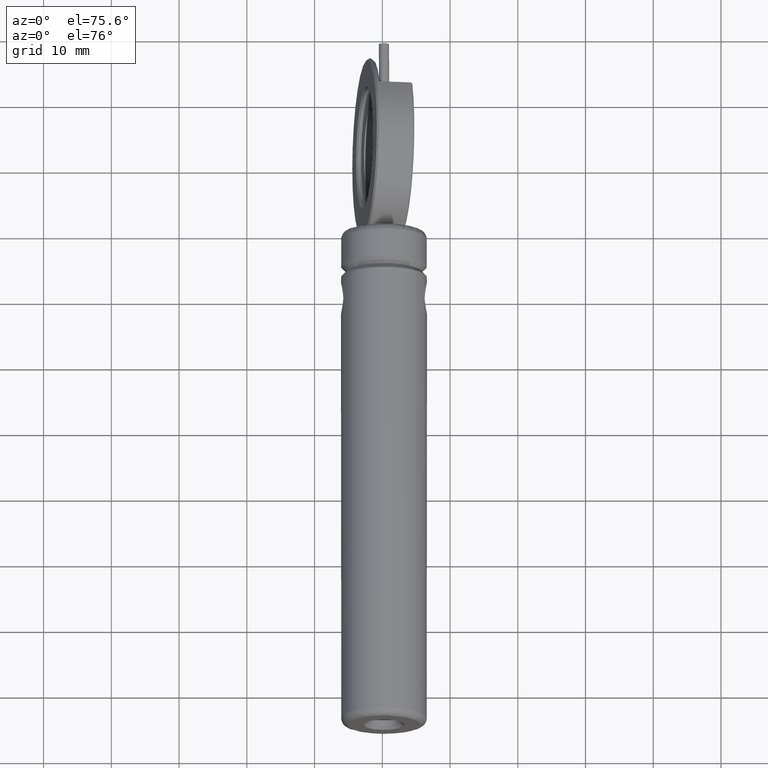
[diagram: clean part render]
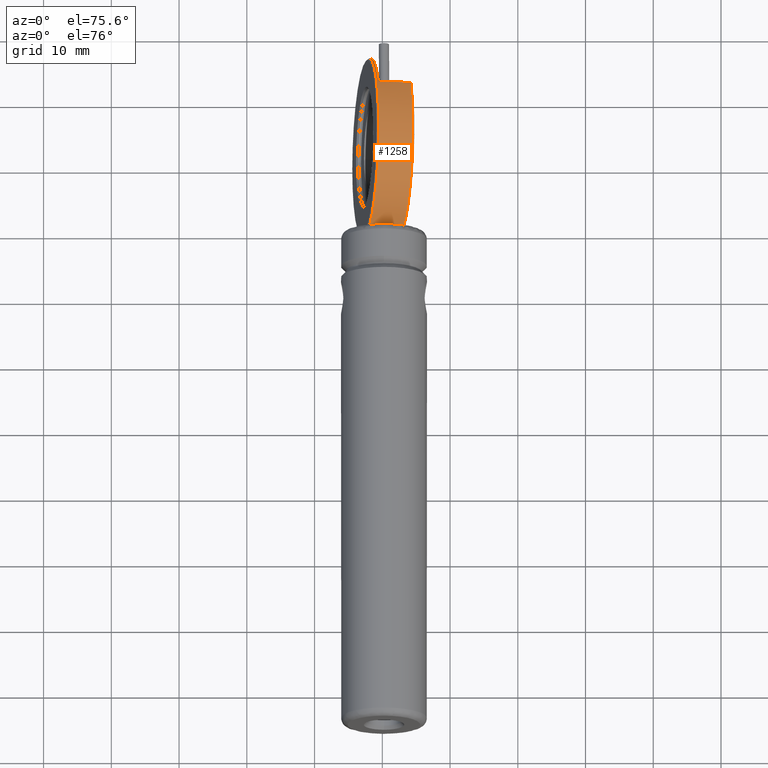
[diagram: same view with one face highlighted and labeled with its STEP entity id]
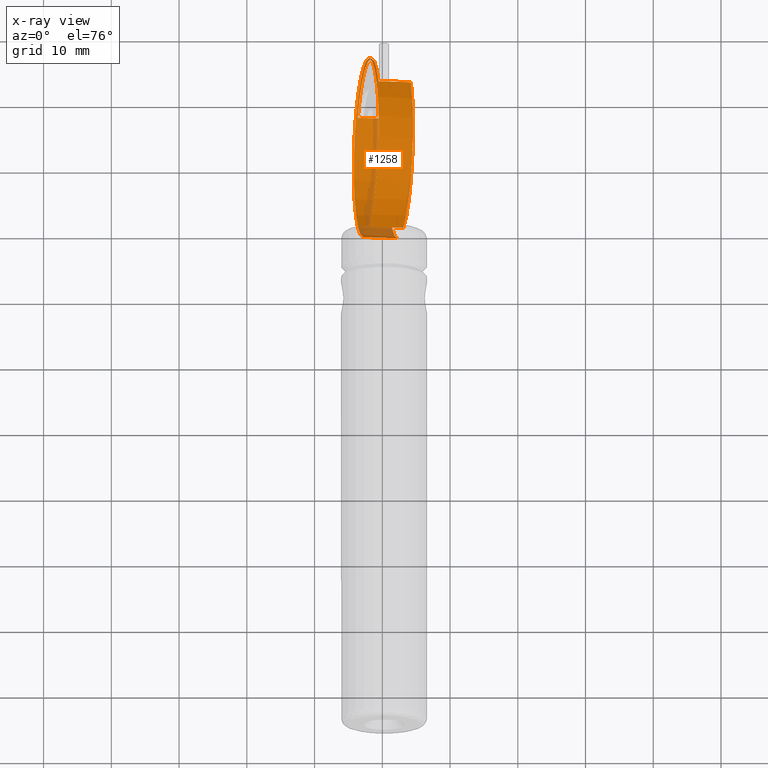
[diagram: x-ray of the same camera — body ghosted, the highlighted face saturated]
A machine part, auxiliary view. The second image highlights one B-rep face of the part: STEP entity #1258.
The next image is the same camera in x-ray: the body ghosted, the highlighted face saturated — about 13% of this face is hidden behind the body in this view.
In plain terms, the highlighted cylindrical surface (partial cylindrical patch) has radius 13.2 mm, axis along (-0.9902, -0, 0.1396).
Its self-contained STEP definition (entity closure, byte-faithful):
#4 = DIRECTION ( 'NONE',  ( -0.9902015919893352169, -0.000000000000000000, 0.1396452907254177589 ) ) ;
#9 = CARTESIAN_POINT ( 'NONE',  ( -47.32387737606156008, 49.92581623896437293, 17.68417509879687088 ) ) ;
#10 = CARTESIAN_POINT ( 'NONE',  ( -48.85396443820721402, 57.28687278639485925, 6.834581553977534973 ) ) ;
#21 = CIRCLE ( 'NONE', #1867, 13.20000000000000284 ) ;
#80 = CARTESIAN_POINT ( 'NONE',  ( -46.89050199093482263, 37.09581623896436753, 20.75716806585134933 ) ) ;
#115 = CARTESIAN_POINT ( 'NONE',  ( -47.07632697806422328, 49.92581623896437293, 17.64926377611551445 ) ) ;
#180 = DIRECTION ( 'NONE',  ( -0.9902015919893349949, -0.000000000000000000, 0.1396452907254177311 ) ) ;
#181 = VECTOR ( 'NONE', #1467, 1000.000000000000227 ) ;
#187 = CARTESIAN_POINT ( 'NONE',  ( -52.10655106537004855, 49.92581623896437293, 18.35866185300063691 ) ) ;
#206 = ORIENTED_EDGE ( 'NONE', *, *, #1402, .T. ) ;
#213 = CARTESIAN_POINT ( 'NONE',  ( -47.75725276118829754, 37.09581623896436753, 14.61118213174238711 ) ) ;
#243 = AXIS2_PLACEMENT_3D ( 'NONE', #1235, #1094, #1849 ) ;
#255 = CARTESIAN_POINT ( 'NONE',  ( -52.80728088033389866, 37.09581623896436753, 15.32337311444201866 ) ) ;
#289 = EDGE_LOOP ( 'NONE', ( #345, #664, #206, #1178, #1405, #1438, #860, #867 ) ) ;
#290 = LINE ( 'NONE', #606, #181 ) ;
#305 = DIRECTION ( 'NONE',  ( 0.1396452907254176201, 0.000000000000000000, 0.9902015919893351059 ) ) ;
#327 = CIRCLE ( 'NONE', #1666, 13.20000000000000284 ) ;
#332 = AXIS2_PLACEMENT_3D ( 'NONE', #115, #717, #490 ) ;
#345 = ORIENTED_EDGE ( 'NONE', *, *, #471, .F. ) ;
#397 = CIRCLE ( 'NONE', #493, 13.20000000000000284 ) ;
#471 = EDGE_CURVE ( 'NONE', #1712, #1865, #397, .T. ) ;
#490 = DIRECTION ( 'NONE',  ( 0.1396452907254176201, 0.000000000000000000, 0.9902015919893351059 ) ) ;
#493 = AXIS2_PLACEMENT_3D ( 'NONE', #1013, #558, #1775 ) ;
#558 = DIRECTION ( 'NONE',  ( -0.9902015919893352169, -0.000000000000000000, 0.1396452907254177589 ) ) ;
#592 = EDGE_CURVE ( 'NONE', #1891, #1564, #290, .T. ) ;
#606 = CARTESIAN_POINT ( 'NONE',  ( -48.60641404020987721, 57.28687278639485925, 6.799670231296179423 ) ) ;
#660 = EDGE_CURVE ( 'NONE', #793, #862, #1029, .T. ) ;
#663 = CARTESIAN_POINT ( 'NONE',  ( 7.017162746316134125, 37.09581623896436753, 13.15472470940516203 ) ) ;
#664 = ORIENTED_EDGE ( 'NONE', *, *, #1710, .T. ) ;
#698 = EDGE_CURVE ( 'NONE', #1536, #1865, #1074, .T. ) ;
#717 = DIRECTION ( 'NONE',  ( -0.9902015919893352169, -0.000000000000000000, 0.1396452907254177589 ) ) ;
#760 = EDGE_CURVE ( 'NONE', #1564, #1536, #327, .T. ) ;
#782 = CARTESIAN_POINT ( 'NONE',  ( 6.150411976062662767, 37.09581623896436753, 7.008738775296195378 ) ) ;
#793 = VERTEX_POINT ( 'NONE', #1203 ) ;
#860 = ORIENTED_EDGE ( 'NONE', *, *, #760, .T. ) ;
#862 = VERTEX_POINT ( 'NONE', #1183 ) ;
#865 = CYLINDRICAL_SURFACE ( 'NONE', #332, 13.20000000000000284 ) ;
#867 = ORIENTED_EDGE ( 'NONE', *, *, #698, .T. ) ;
#889 = CARTESIAN_POINT ( 'NONE',  ( -45.54623991591856935, 57.28687278639485925, 28.49885732093484947 ) ) ;
#907 = CIRCLE ( 'NONE', #243, 13.20000000000000284 ) ;
#909 = CARTESIAN_POINT ( 'NONE',  ( -53.63663812751570958, 57.28687278639485925, 7.509068308181302775 ) ) ;
#976 = LINE ( 'NONE', #663, #1191 ) ;
#1013 = CARTESIAN_POINT ( 'NONE',  ( -52.37390549520716121, 49.92581623896437293, 18.39636608149649888 ) ) ;
#1029 = LINE ( 'NONE', #889, #1221 ) ;
#1067 = DIRECTION ( 'NONE',  ( 0.1396452907254176201, 0.000000000000000000, 0.9902015919893351059 ) ) ;
#1074 = LINE ( 'NONE', #782, #1701 ) ;
#1094 = DIRECTION ( 'NONE',  ( -0.9902015919893352169, -0.000000000000000000, 0.1396452907254177589 ) ) ;
#1178 = ORIENTED_EDGE ( 'NONE', *, *, #660, .T. ) ;
#1183 = CARTESIAN_POINT ( 'NONE',  ( -50.57646400322439462, 57.28687278639485925, 29.20825539781997549 ) ) ;
#1191 = VECTOR ( 'NONE', #1272, 1000.000000000000227 ) ;
#1203 = CARTESIAN_POINT ( 'NONE',  ( -45.79379031391590615, 57.28687278639485925, 28.53376864361620591 ) ) ;
#1221 = VECTOR ( 'NONE', #1625, 1000.000000000000227 ) ;
#1235 = CARTESIAN_POINT ( 'NONE',  ( -47.32387737606156008, 49.92581623896437293, 17.68417509879687088 ) ) ;
#1258 = ADVANCED_FACE ( 'NONE', ( #1620 ), #865, .T. ) ;
#1272 = DIRECTION ( 'NONE',  ( 0.9902015919893349949, 0.000000000000000000, -0.1396452907254177311 ) ) ;
#1297 = EDGE_CURVE ( 'NONE', #862, #1891, #21, .T. ) ;
#1402 = EDGE_CURVE ( 'NONE', #1606, #793, #907, .T. ) ;
#1405 = ORIENTED_EDGE ( 'NONE', *, *, #1297, .T. ) ;
#1438 = ORIENTED_EDGE ( 'NONE', *, *, #592, .T. ) ;
#1467 = DIRECTION ( 'NONE',  ( 0.9902015919893349949, 0.000000000000000000, -0.1396452907254177311 ) ) ;
#1536 = VERTEX_POINT ( 'NONE', #213 ) ;
#1564 = VERTEX_POINT ( 'NONE', #10 ) ;
#1576 = CARTESIAN_POINT ( 'NONE',  ( -51.94053011008042375, 37.09581623896436753, 21.46935904855098087 ) ) ;
#1606 = VERTEX_POINT ( 'NONE', #80 ) ;
#1620 = FACE_OUTER_BOUND ( 'NONE', #289, .T. ) ;
#1625 = DIRECTION ( 'NONE',  ( -0.9902015919893349949, -0.000000000000000000, 0.1396452907254177311 ) ) ;
#1666 = AXIS2_PLACEMENT_3D ( 'NONE', #9, #4, #305 ) ;
#1691 = DIRECTION ( 'NONE',  ( -0.9902015919893352169, -0.000000000000000000, 0.1396452907254177589 ) ) ;
#1701 = VECTOR ( 'NONE', #180, 1000.000000000000227 ) ;
#1710 = EDGE_CURVE ( 'NONE', #1712, #1606, #976, .T. ) ;
#1712 = VERTEX_POINT ( 'NONE', #1576 ) ;
#1775 = DIRECTION ( 'NONE',  ( -0.1396452907254176201, 0.000000000000000000, -0.9902015919893351059 ) ) ;
#1849 = DIRECTION ( 'NONE',  ( 0.1396452907254176201, 0.000000000000000000, 0.9902015919893351059 ) ) ;
#1865 = VERTEX_POINT ( 'NONE', #255 ) ;
#1867 = AXIS2_PLACEMENT_3D ( 'NONE', #187, #1691, #1067 ) ;
#1891 = VERTEX_POINT ( 'NONE', #909 ) ;